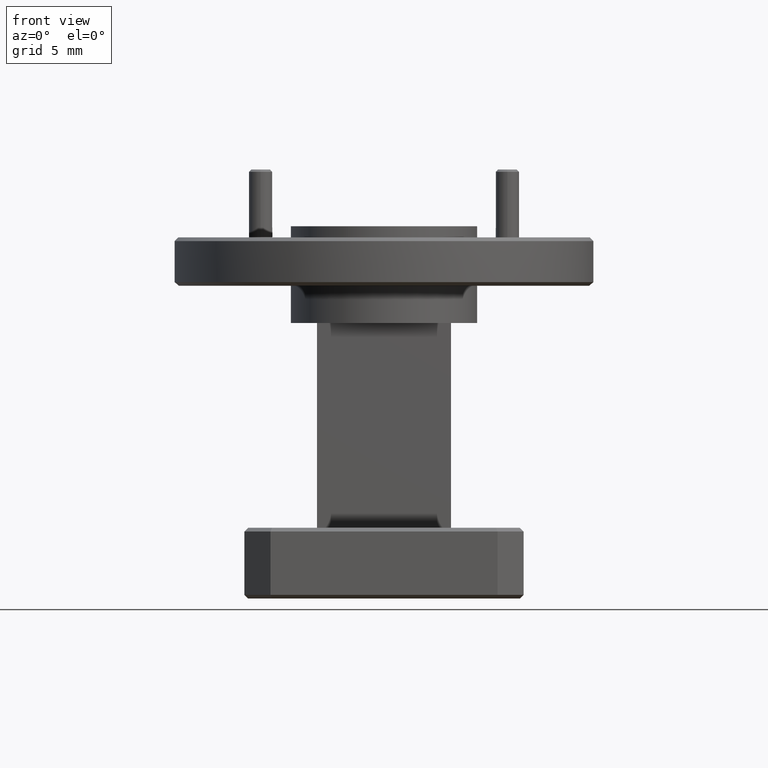
[diagram: clean part render]
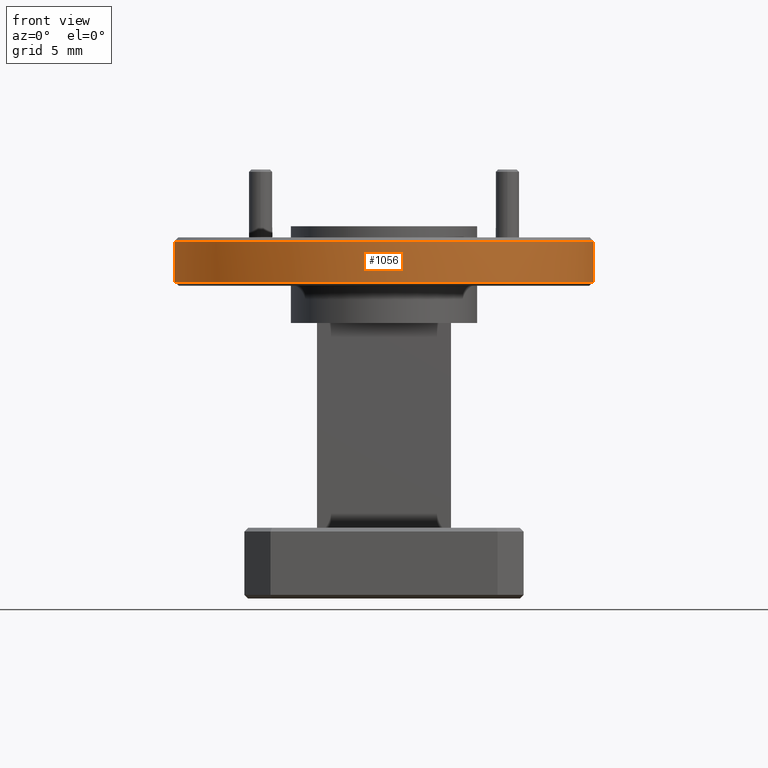
[diagram: same view with one face highlighted and labeled with its STEP entity id]
A machine part, front view. The second image highlights one B-rep face of the part: STEP entity #1056.
In plain terms, the highlighted cylindrical surface (partial cylindrical patch) has radius 14.2875 mm, axis along (-0, -0, -1).
Its self-contained STEP definition (entity closure, byte-faithful):
#257 = CARTESIAN_POINT ( 'NONE',  ( -3.206395841607356400, 0.6817944780980216300, 1.688770279067070000 ) ) ;
#269 = CARTESIAN_POINT ( 'NONE',  ( -2.643895841607355900, 0.6817944780980217400, 1.578770279067069900 ) ) ;
#334 = AXIS2_PLACEMENT_3D ( 'NONE', #551, #772, #2502 ) ;
#459 = DIRECTION ( 'NONE',  ( 1.000000000000000000, 0.0000000000000000000, 0.0000000000000000000 ) ) ;
#479 = CARTESIAN_POINT ( 'NONE',  ( -3.768895841607356400, 0.6817944780980216300, 1.578770279067069900 ) ) ;
#548 = AXIS2_PLACEMENT_3D ( 'NONE', #257, #721, #736 ) ;
#551 = CARTESIAN_POINT ( 'NONE',  ( -3.206395841607356400, 0.6817944780980216300, 1.698770279067069600 ) ) ;
#639 = CIRCLE ( 'NONE', #2377, 0.5625000000000003300 ) ;
#645 = ORIENTED_EDGE ( 'NONE', *, *, #2411, .F. ) ;
#721 = DIRECTION ( 'NONE',  ( -0.0000000000000000000, -0.0000000000000000000, -1.000000000000000000 ) ) ;
#736 = DIRECTION ( 'NONE',  ( -1.000000000000000000, 0.0000000000000000000, 0.0000000000000000000 ) ) ;
#766 = VECTOR ( 'NONE', #3123, 39.37007874015748100 ) ;
#772 = DIRECTION ( 'NONE',  ( -0.0000000000000000000, -0.0000000000000000000, -1.000000000000000000 ) ) ;
#899 = EDGE_CURVE ( 'NONE', #2320, #2415, #1013, .T. ) ;
#911 = VERTEX_POINT ( 'NONE', #479 ) ;
#946 = DIRECTION ( 'NONE',  ( -0.0000000000000000000, -0.0000000000000000000, -1.000000000000000000 ) ) ;
#1013 = CIRCLE ( 'NONE', #548, 0.5625000000000003300 ) ;
#1024 = CARTESIAN_POINT ( 'NONE',  ( -3.206395841607356400, 0.6817944780980216300, 1.578770279067069900 ) ) ;
#1031 = VECTOR ( 'NONE', #2215, 39.37007874015748100 ) ;
#1034 = EDGE_LOOP ( 'NONE', ( #1881, #1463, #3197, #645, #2856 ) ) ;
#1056 = ADVANCED_FACE ( 'NONE', ( #1712 ), #2984, .T. ) ;
#1285 = DIRECTION ( 'NONE',  ( -0.0000000000000000000, -0.0000000000000000000, -1.000000000000000000 ) ) ;
#1450 = CARTESIAN_POINT ( 'NONE',  ( -3.206395841607356400, 0.6817944780980216300, 1.578770279067069900 ) ) ;
#1463 = ORIENTED_EDGE ( 'NONE', *, *, #899, .T. ) ;
#1710 = AXIS2_PLACEMENT_3D ( 'NONE', #1024, #1285, #2257 ) ;
#1712 = FACE_OUTER_BOUND ( 'NONE', #1034, .T. ) ;
#1856 = VERTEX_POINT ( 'NONE', #269 ) ;
#1881 = ORIENTED_EDGE ( 'NONE', *, *, #2954, .F. ) ;
#1946 = CARTESIAN_POINT ( 'NONE',  ( -3.768895841607356400, 0.6817944780980216300, 1.688770279067070000 ) ) ;
#1977 = CARTESIAN_POINT ( 'NONE',  ( -3.768895841607356400, 0.6817944780980216300, 1.698770279067069600 ) ) ;
#2215 = DIRECTION ( 'NONE',  ( -0.0000000000000000000, -0.0000000000000000000, -1.000000000000000000 ) ) ;
#2257 = DIRECTION ( 'NONE',  ( 1.000000000000000000, 0.0000000000000000000, 0.0000000000000000000 ) ) ;
#2320 = VERTEX_POINT ( 'NONE', #2906 ) ;
#2331 = LINE ( 'NONE', #2930, #766 ) ;
#2344 = CARTESIAN_POINT ( 'NONE',  ( -3.206395841607356400, 0.1192944780980215300, 1.578770279067069900 ) ) ;
#2377 = AXIS2_PLACEMENT_3D ( 'NONE', #1450, #946, #459 ) ;
#2411 = EDGE_CURVE ( 'NONE', #2813, #911, #639, .T. ) ;
#2415 = VERTEX_POINT ( 'NONE', #1946 ) ;
#2421 = LINE ( 'NONE', #1977, #1031 ) ;
#2473 = EDGE_CURVE ( 'NONE', #2415, #911, #2421, .T. ) ;
#2502 = DIRECTION ( 'NONE',  ( -1.000000000000000000, 0.0000000000000000000, 0.0000000000000000000 ) ) ;
#2580 = EDGE_CURVE ( 'NONE', #1856, #2813, #3157, .T. ) ;
#2813 = VERTEX_POINT ( 'NONE', #2344 ) ;
#2856 = ORIENTED_EDGE ( 'NONE', *, *, #2580, .F. ) ;
#2906 = CARTESIAN_POINT ( 'NONE',  ( -2.643895841607355900, 0.6817944780980217400, 1.688770279067070000 ) ) ;
#2930 = CARTESIAN_POINT ( 'NONE',  ( -2.643895841607355900, 0.6817944780980217400, 1.698770279067069600 ) ) ;
#2954 = EDGE_CURVE ( 'NONE', #2320, #1856, #2331, .T. ) ;
#2984 = CYLINDRICAL_SURFACE ( 'NONE', #334, 0.5625000000000003300 ) ;
#3123 = DIRECTION ( 'NONE',  ( -0.0000000000000000000, -0.0000000000000000000, -1.000000000000000000 ) ) ;
#3157 = CIRCLE ( 'NONE', #1710, 0.5625000000000003300 ) ;
#3197 = ORIENTED_EDGE ( 'NONE', *, *, #2473, .T. ) ;